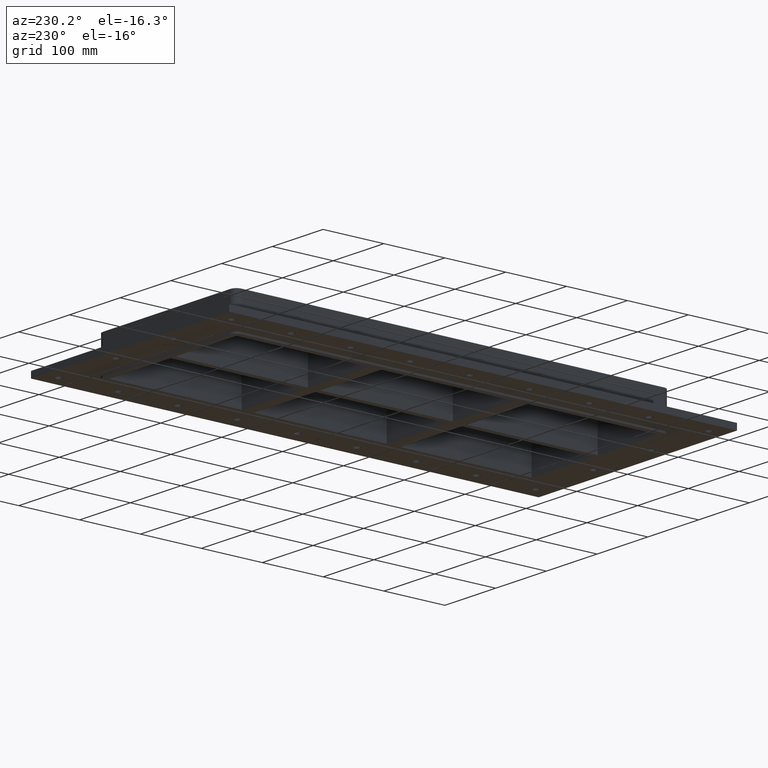
[diagram: clean part render]
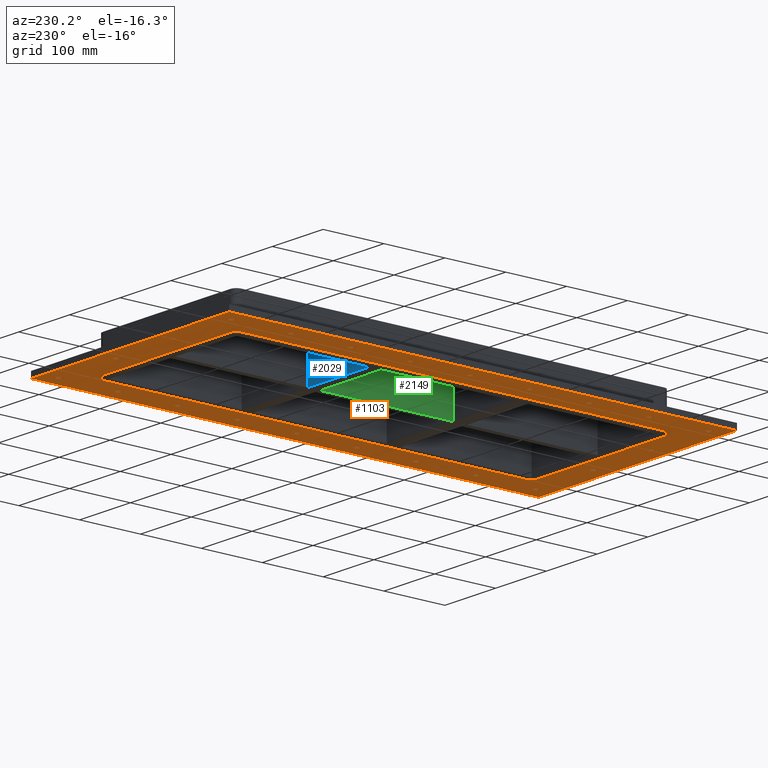
[diagram: same view with three faces highlighted in distinct colors, each labeled with its STEP entity id]
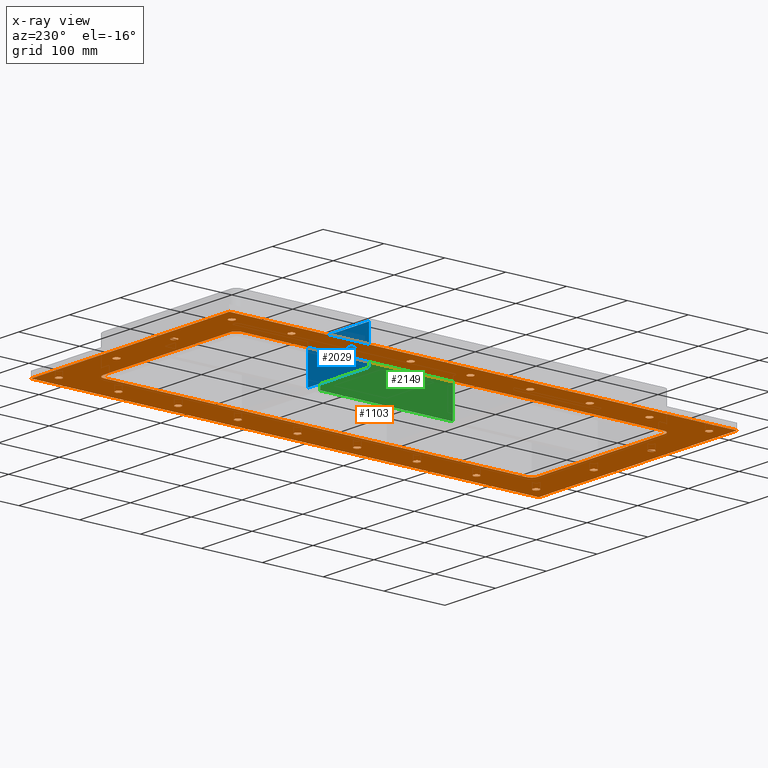
[diagram: x-ray of the same camera — body ghosted, the three highlighted faces saturated]
A machine part, auxiliary view with three faces highlighted in distinct colors.
The next image is the same camera in x-ray (body ghosted, the three faces saturated) — at least one of them is partly hidden behind the body in this view.
Their STEP definitions:

[orange] entity #1103 — the highlighted planar face has unit normal (0, 0, 1).
#73=CARTESIAN_POINT('',(-62.083333333333286,-392.0,-27.000000000000028));
#74=VERTEX_POINT('',#73);
#75=CARTESIAN_POINT('',(-56.8333333333333,-392.0,-27.000000000000028));
#76=DIRECTION('',(0.0,0.0,1.0));
#77=DIRECTION('',(1.0,0.0,0.0));
#78=AXIS2_PLACEMENT_3D('',#75,#76,#77);
#79=CIRCLE('',#78,5.25);
#80=EDGE_CURVE('',#74,#74,#79,.T.);
#101=CARTESIAN_POINT('',(51.583333333333385,-392.0,-27.000000000000028));
#102=VERTEX_POINT('',#101);
#103=CARTESIAN_POINT('',(56.833333333333371,-392.0,-27.000000000000028));
#104=DIRECTION('',(0.0,0.0,1.0));
#105=DIRECTION('',(1.0,0.0,0.0));
#106=AXIS2_PLACEMENT_3D('',#103,#104,#105);
#107=CIRCLE('',#106,5.25);
#108=EDGE_CURVE('',#102,#102,#107,.T.);
#129=CARTESIAN_POINT('',(51.583333333333243,392.0,-27.000000000000028));
#130=VERTEX_POINT('',#129);
#131=CARTESIAN_POINT('',(56.833333333333229,392.0,-27.000000000000028));
#132=DIRECTION('',(0.0,0.0,1.0));
#133=DIRECTION('',(1.0,0.0,0.0));
#134=AXIS2_PLACEMENT_3D('',#131,#132,#133);
#135=CIRCLE('',#134,5.25);
#136=EDGE_CURVE('',#130,#130,#135,.T.);
#157=CARTESIAN_POINT('',(-62.083333333333428,392.0,-27.000000000000028));
#158=VERTEX_POINT('',#157);
#159=CARTESIAN_POINT('',(-56.833333333333442,392.0,-27.000000000000028));
#160=DIRECTION('',(0.0,0.0,1.0));
#161=DIRECTION('',(1.0,0.0,0.0));
#162=AXIS2_PLACEMENT_3D('',#159,#160,#161);
#163=CIRCLE('',#162,5.25);
#164=EDGE_CURVE('',#158,#158,#163,.T.);
#185=CARTESIAN_POINT('',(165.25000000000003,-294.00000000000011,-27.000000000000028));
#186=VERTEX_POINT('',#185);
#187=CARTESIAN_POINT('',(170.5,-294.00000000000011,-27.000000000000028));
#188=DIRECTION('',(0.0,0.0,1.0));
#189=DIRECTION('',(1.0,0.0,0.0));
#190=AXIS2_PLACEMENT_3D('',#187,#188,#189);
#191=CIRCLE('',#190,5.25);
#192=EDGE_CURVE('',#186,#186,#191,.T.);
#213=CARTESIAN_POINT('',(165.25000000000003,-195.99999999999997,-27.000000000000028));
#214=VERTEX_POINT('',#213);
#215=CARTESIAN_POINT('',(170.5,-195.99999999999997,-27.000000000000028));
#216=DIRECTION('',(0.0,0.0,1.0));
#217=DIRECTION('',(1.0,0.0,0.0));
#218=AXIS2_PLACEMENT_3D('',#215,#216,#217);
#219=CIRCLE('',#218,5.25);
#220=EDGE_CURVE('',#214,#214,#219,.T.);
#241=CARTESIAN_POINT('',(165.25,-98.0,-27.000000000000028));
#242=VERTEX_POINT('',#241);
#243=CARTESIAN_POINT('',(170.49999999999997,-98.0,-27.000000000000028));
#244=DIRECTION('',(0.0,0.0,1.0));
#245=DIRECTION('',(1.0,0.0,0.0));
#246=AXIS2_PLACEMENT_3D('',#243,#244,#245);
#247=CIRCLE('',#246,5.25);
#248=EDGE_CURVE('',#242,#242,#247,.T.);
#269=CARTESIAN_POINT('',(165.25,0.0,-27.000000000000028));
#270=VERTEX_POINT('',#269);
#271=CARTESIAN_POINT('',(170.49999999999997,0.0,-27.000000000000028));
#272=DIRECTION('',(0.0,0.0,1.0));
#273=DIRECTION('',(1.0,0.0,0.0));
#274=AXIS2_PLACEMENT_3D('',#271,#272,#273);
#275=CIRCLE('',#274,5.25);
#276=EDGE_CURVE('',#270,#270,#275,.T.);
#297=CARTESIAN_POINT('',(165.25,98.0,-27.000000000000028));
#298=VERTEX_POINT('',#297);
#299=CARTESIAN_POINT('',(170.49999999999997,98.0,-27.000000000000028));
#300=DIRECTION('',(0.0,0.0,1.0));
#301=DIRECTION('',(1.0,0.0,0.0));
#302=AXIS2_PLACEMENT_3D('',#299,#300,#301);
#303=CIRCLE('',#302,5.25);
#304=EDGE_CURVE('',#298,#298,#303,.T.);
#325=CARTESIAN_POINT('',(165.24999999999994,196.0,-27.000000000000028));
#326=VERTEX_POINT('',#325);
#327=CARTESIAN_POINT('',(170.49999999999994,196.0,-27.000000000000028));
#328=DIRECTION('',(0.0,0.0,1.0));
#329=DIRECTION('',(1.0,0.0,0.0));
#330=AXIS2_PLACEMENT_3D('',#327,#328,#329);
#331=CIRCLE('',#330,5.25);
#332=EDGE_CURVE('',#326,#326,#331,.T.);
#353=CARTESIAN_POINT('',(165.24999999999994,294.0,-27.000000000000028));
#354=VERTEX_POINT('',#353);
#355=CARTESIAN_POINT('',(170.49999999999994,294.0,-27.000000000000028));
#356=DIRECTION('',(0.0,0.0,1.0));
#357=DIRECTION('',(1.0,0.0,0.0));
#358=AXIS2_PLACEMENT_3D('',#355,#356,#357);
#359=CIRCLE('',#358,5.25);
#360=EDGE_CURVE('',#354,#354,#359,.T.);
#381=CARTESIAN_POINT('',(-175.75000000000006,294.00000000000011,-27.000000000000028));
#382=VERTEX_POINT('',#381);
#383=CARTESIAN_POINT('',(-170.50000000000009,294.00000000000011,-27.000000000000028));
#384=DIRECTION('',(0.0,0.0,1.0));
#385=DIRECTION('',(1.0,0.0,0.0));
#386=AXIS2_PLACEMENT_3D('',#383,#384,#385);
#387=CIRCLE('',#386,5.25);
#388=EDGE_CURVE('',#382,#382,#387,.T.);
#409=CARTESIAN_POINT('',(-175.75000000000003,195.99999999999997,-27.000000000000028));
#410=VERTEX_POINT('',#409);
#411=CARTESIAN_POINT('',(-170.50000000000006,195.99999999999997,-27.000000000000028));
#412=DIRECTION('',(0.0,0.0,1.0));
#413=DIRECTION('',(1.0,0.0,0.0));
#414=AXIS2_PLACEMENT_3D('',#411,#412,#413);
#415=CIRCLE('',#414,5.25);
#416=EDGE_CURVE('',#410,#410,#415,.T.);
#437=CARTESIAN_POINT('',(-175.75000000000003,98.0,-27.000000000000028));
#438=VERTEX_POINT('',#437);
#439=CARTESIAN_POINT('',(-170.50000000000006,98.0,-27.000000000000028));
#440=DIRECTION('',(0.0,0.0,1.0));
#441=DIRECTION('',(1.0,0.0,0.0));
#442=AXIS2_PLACEMENT_3D('',#439,#440,#441);
#443=CIRCLE('',#442,5.25);
#444=EDGE_CURVE('',#438,#438,#443,.T.);
#465=CARTESIAN_POINT('',(-175.75,0.0,-27.000000000000028));
#466=VERTEX_POINT('',#465);
#467=CARTESIAN_POINT('',(-170.5,0.0,-27.000000000000028));
#468=DIRECTION('',(0.0,0.0,1.0));
#469=DIRECTION('',(1.0,0.0,0.0));
#470=AXIS2_PLACEMENT_3D('',#467,#468,#469);
#471=CIRCLE('',#470,5.25);
#472=EDGE_CURVE('',#466,#466,#471,.T.);
#493=CARTESIAN_POINT('',(-175.75,-98.0,-27.000000000000028));
#494=VERTEX_POINT('',#493);
#495=CARTESIAN_POINT('',(-170.5,-98.0,-27.000000000000028));
#496=DIRECTION('',(0.0,0.0,1.0));
#497=DIRECTION('',(1.0,0.0,0.0));
#498=AXIS2_PLACEMENT_3D('',#495,#496,#497);
#499=CIRCLE('',#498,5.25);
#500=EDGE_CURVE('',#494,#494,#499,.T.);
#521=CARTESIAN_POINT('',(-175.74999999999994,-196.0,-27.000000000000028));
#522=VERTEX_POINT('',#521);
#523=CARTESIAN_POINT('',(-170.49999999999997,-196.0,-27.000000000000028));
#524=DIRECTION('',(0.0,0.0,1.0));
#525=DIRECTION('',(1.0,0.0,0.0));
#526=AXIS2_PLACEMENT_3D('',#523,#524,#525);
#527=CIRCLE('',#526,5.25);
#528=EDGE_CURVE('',#522,#522,#527,.T.);
#549=CARTESIAN_POINT('',(-175.74999999999994,-294.0,-27.000000000000028));
#550=VERTEX_POINT('',#549);
#551=CARTESIAN_POINT('',(-170.49999999999997,-294.0,-27.000000000000028));
#552=DIRECTION('',(0.0,0.0,1.0));
#553=DIRECTION('',(1.0,0.0,0.0));
#554=AXIS2_PLACEMENT_3D('',#551,#552,#553);
#555=CIRCLE('',#554,5.25);
#556=EDGE_CURVE('',#550,#550,#555,.T.);
#577=CARTESIAN_POINT('',(-175.75000000000011,392.0,-27.000000000000028));
#578=VERTEX_POINT('',#577);
#579=CARTESIAN_POINT('',(-170.50000000000011,392.0,-27.000000000000028));
#580=DIRECTION('',(0.0,0.0,1.0));
#581=DIRECTION('',(1.0,0.0,0.0));
#582=AXIS2_PLACEMENT_3D('',#579,#580,#581);
#583=CIRCLE('',#582,5.25);
#584=EDGE_CURVE('',#578,#578,#583,.T.);
#605=CARTESIAN_POINT('',(165.24999999999994,392.0,-27.000000000000028));
#606=VERTEX_POINT('',#605);
#607=CARTESIAN_POINT('',(170.49999999999994,392.0,-27.000000000000028));
#608=DIRECTION('',(0.0,0.0,1.0));
#609=DIRECTION('',(1.0,0.0,0.0));
#610=AXIS2_PLACEMENT_3D('',#607,#608,#609);
#611=CIRCLE('',#610,5.25);
#612=EDGE_CURVE('',#606,#606,#611,.T.);
#633=CARTESIAN_POINT('',(165.25000000000006,-392.0,-27.000000000000028));
#634=VERTEX_POINT('',#633);
#635=CARTESIAN_POINT('',(170.50000000000006,-392.0,-27.000000000000028));
#636=DIRECTION('',(0.0,0.0,1.0));
#637=DIRECTION('',(1.0,0.0,0.0));
#638=AXIS2_PLACEMENT_3D('',#635,#636,#637);
#639=CIRCLE('',#638,5.25);
#640=EDGE_CURVE('',#634,#634,#639,.T.);
#661=CARTESIAN_POINT('',(-175.74999999999994,-392.0,-27.000000000000028));
#662=VERTEX_POINT('',#661);
#663=CARTESIAN_POINT('',(-170.49999999999997,-392.0,-27.000000000000028));
#664=DIRECTION('',(0.0,0.0,1.0));
#665=DIRECTION('',(1.0,0.0,0.0));
#666=AXIS2_PLACEMENT_3D('',#663,#664,#665);
#667=CIRCLE('',#666,5.25);
#668=EDGE_CURVE('',#662,#662,#667,.T.);
#689=CARTESIAN_POINT('',(-195.49999999999997,-417.0,-27.0));
#690=VERTEX_POINT('',#689);
#691=CARTESIAN_POINT('',(-195.50000000000011,417.0,-27.0));
#692=VERTEX_POINT('',#691);
#693=CARTESIAN_POINT('',(-195.49999999999997,-417.0,-27.0));
#694=DIRECTION('',(0.0,1.0,0.0));
#695=VECTOR('',#694,834.0);
#696=LINE('',#693,#695);
#697=EDGE_CURVE('',#690,#692,#696,.T.);
#729=CARTESIAN_POINT('',(195.49999999999994,417.0,-27.0));
#730=VERTEX_POINT('',#729);
#731=CARTESIAN_POINT('',(-195.50000000000011,417.0,-27.0));
#732=DIRECTION('',(1.0,0.0,0.0));
#733=VECTOR('',#732,391.00000000000011);
#734=LINE('',#731,#733);
#735=EDGE_CURVE('',#692,#730,#734,.T.);
#760=CARTESIAN_POINT('',(195.50000000000006,-417.0,-27.0));
#761=VERTEX_POINT('',#760);
#762=CARTESIAN_POINT('',(195.49999999999994,417.0,-27.0));
#763=DIRECTION('',(0.0,-1.0,0.0));
#764=VECTOR('',#763,834.0);
#765=LINE('',#762,#764);
#766=EDGE_CURVE('',#730,#761,#765,.T.);
#791=CARTESIAN_POINT('',(195.50000000000006,-417.0,-27.0));
#792=DIRECTION('',(-1.0,0.0,0.0));
#793=VECTOR('',#792,391.0);
#794=LINE('',#791,#793);
#795=EDGE_CURVE('',#761,#690,#794,.T.);
#956=CARTESIAN_POINT('',(-4.176251E-014,0.0,-27.000000000000007));
#957=DIRECTION('',(0.0,0.0,1.0));
#958=DIRECTION('',(1.0,0.0,0.0));
#959=AXIS2_PLACEMENT_3D('',#956,#957,#958);
#960=PLANE('',#959);
#961=ORIENTED_EDGE('',*,*,#795,.T.);
#962=ORIENTED_EDGE('',*,*,#697,.T.);
#963=ORIENTED_EDGE('',*,*,#735,.T.);
#964=ORIENTED_EDGE('',*,*,#766,.T.);
#965=EDGE_LOOP('',(#961,#962,#963,#964));
#966=FACE_OUTER_BOUND('',#965,.T.);
#967=ORIENTED_EDGE('',*,*,#80,.T.);
#968=EDGE_LOOP('',(#967));
#969=FACE_BOUND('',#968,.T.);
#970=ORIENTED_EDGE('',*,*,#108,.T.);
#971=EDGE_LOOP('',(#970));
#972=FACE_BOUND('',#971,.T.);
#973=ORIENTED_EDGE('',*,*,#136,.T.);
#974=EDGE_LOOP('',(#973));
#975=FACE_BOUND('',#974,.T.);
#976=ORIENTED_EDGE('',*,*,#164,.T.);
#977=EDGE_LOOP('',(#976));
#978=FACE_BOUND('',#977,.T.);
#979=ORIENTED_EDGE('',*,*,#192,.T.);
#980=EDGE_LOOP('',(#979));
#981=FACE_BOUND('',#980,.T.);
#982=ORIENTED_EDGE('',*,*,#220,.T.);
#983=EDGE_LOOP('',(#982));
#984=FACE_BOUND('',#983,.T.);
#985=ORIENTED_EDGE('',*,*,#248,.T.);
#986=EDGE_LOOP('',(#985));
#987=FACE_BOUND('',#986,.T.);
#988=ORIENTED_EDGE('',*,*,#276,.T.);
#989=EDGE_LOOP('',(#988));
#990=FACE_BOUND('',#989,.T.);
#991=ORIENTED_EDGE('',*,*,#304,.T.);
#992=EDGE_LOOP('',(#991));
#993=FACE_BOUND('',#992,.T.);
#994=ORIENTED_EDGE('',*,*,#332,.T.);
#995=EDGE_LOOP('',(#994));
#996=FACE_BOUND('',#995,.T.);
#997=ORIENTED_EDGE('',*,*,#360,.T.);
#998=EDGE_LOOP('',(#997));
#999=FACE_BOUND('',#998,.T.);
#1000=ORIENTED_EDGE('',*,*,#388,.T.);
#1001=EDGE_LOOP('',(#1000));
#1002=FACE_BOUND('',#1001,.T.);
#1003=ORIENTED_EDGE('',*,*,#416,.T.);
#1004=EDGE_LOOP('',(#1003));
#1005=FACE_BOUND('',#1004,.T.);
#1006=ORIENTED_EDGE('',*,*,#444,.T.);
#1007=EDGE_LOOP('',(#1006));
#1008=FACE_BOUND('',#1007,.T.);
#1009=ORIENTED_EDGE('',*,*,#472,.T.);
#1010=EDGE_LOOP('',(#1009));
#1011=FACE_BOUND('',#1010,.T.);
#1012=ORIENTED_EDGE('',*,*,#500,.T.);
#1013=EDGE_LOOP('',(#1012));
#1014=FACE_BOUND('',#1013,.T.);
#1015=ORIENTED_EDGE('',*,*,#528,.T.);
#1016=EDGE_LOOP('',(#1015));
#1017=FACE_BOUND('',#1016,.T.);
#1018=ORIENTED_EDGE('',*,*,#556,.T.);
#1019=EDGE_LOOP('',(#1018));
#1020=FACE_BOUND('',#1019,.T.);
#1021=ORIENTED_EDGE('',*,*,#584,.T.);
#1022=EDGE_LOOP('',(#1021));
#1023=FACE_BOUND('',#1022,.T.);
#1024=ORIENTED_EDGE('',*,*,#612,.T.);
#1025=EDGE_LOOP('',(#1024));
#1026=FACE_BOUND('',#1025,.T.);
#1027=ORIENTED_EDGE('',*,*,#640,.T.);
#1028=EDGE_LOOP('',(#1027));
#1029=FACE_BOUND('',#1028,.T.);
#1030=ORIENTED_EDGE('',*,*,#668,.T.);
#1031=EDGE_LOOP('',(#1030));
#1032=FACE_BOUND('',#1031,.T.);
#1033=CARTESIAN_POINT('',(125.49999999999996,357.0,-27.0));
#1034=VERTEX_POINT('',#1033);
#1035=CARTESIAN_POINT('',(135.49999999999997,347.0,-27.0));
#1036=VERTEX_POINT('',#1035);
#1037=CARTESIAN_POINT('',(125.4999999999999,347.00000000000017,-27.000000000000007));
#1038=DIRECTION('',(0.0,0.0,-1.0));
#1039=DIRECTION('',(0.707106781186547,0.707106781186547,0.0));
#1040=AXIS2_PLACEMENT_3D('',#1037,#1038,#1039);
#1041=CIRCLE('',#1040,9.999999999999998);
#1042=EDGE_CURVE('',#1034,#1036,#1041,.T.);
#1043=ORIENTED_EDGE('',*,*,#1042,.F.);
#1044=CARTESIAN_POINT('',(-125.50000000000009,357.0,-27.0));
#1045=VERTEX_POINT('',#1044);
#1046=CARTESIAN_POINT('',(-125.5000000000001,357.00000000000017,-27.000000000000007));
#1047=DIRECTION('',(1.0,0.0,0.0));
#1048=VECTOR('',#1047,251.00000000000006);
#1049=LINE('',#1046,#1048);
#1050=EDGE_CURVE('',#1045,#1034,#1049,.T.);
#1051=ORIENTED_EDGE('',*,*,#1050,.F.);
#1052=CARTESIAN_POINT('',(-135.50000000000009,347.0,-27.0));
#1053=VERTEX_POINT('',#1052);
#1054=CARTESIAN_POINT('',(-125.50000000000011,347.00000000000017,-27.000000000000007));
#1055=DIRECTION('',(0.0,0.0,-1.0));
#1056=DIRECTION('',(-0.707106781186547,0.707106781186547,0.0));
#1057=AXIS2_PLACEMENT_3D('',#1054,#1055,#1056);
#1058=CIRCLE('',#1057,9.999999999999998);
#1059=EDGE_CURVE('',#1053,#1045,#1058,.T.);
#1060=ORIENTED_EDGE('',*,*,#1059,.F.);
#1061=CARTESIAN_POINT('',(-135.49999999999997,-347.0,-27.0));
#1062=VERTEX_POINT('',#1061);
#1063=CARTESIAN_POINT('',(-135.49999999999989,-347.00000000000006,-27.000000000000007));
#1064=DIRECTION('',(0.0,1.0,0.0));
#1065=VECTOR('',#1064,694.0);
#1066=LINE('',#1063,#1065);
#1067=EDGE_CURVE('',#1062,#1053,#1066,.T.);
#1068=ORIENTED_EDGE('',*,*,#1067,.F.);
#1069=CARTESIAN_POINT('',(-125.49999999999994,-357.0,-27.0));
#1070=VERTEX_POINT('',#1069);
#1071=CARTESIAN_POINT('',(-125.4999999999999,-346.99999999999989,-27.000000000000007));
#1072=DIRECTION('',(0.0,0.0,-1.0));
#1073=DIRECTION('',(-0.707106781186547,-0.707106781186547,0.0));
#1074=AXIS2_PLACEMENT_3D('',#1071,#1072,#1073);
#1075=CIRCLE('',#1074,9.999999999999998);
#1076=EDGE_CURVE('',#1070,#1062,#1075,.T.);
#1077=ORIENTED_EDGE('',*,*,#1076,.F.);
#1078=CARTESIAN_POINT('',(125.50000000000009,-357.0,-27.0));
#1079=VERTEX_POINT('',#1078);
#1080=CARTESIAN_POINT('',(125.50000000000006,-356.99999999999989,-27.000000000000007));
#1081=DIRECTION('',(-1.0,0.0,0.0));
#1082=VECTOR('',#1081,251.0);
#1083=LINE('',#1080,#1082);
#1084=EDGE_CURVE('',#1079,#1070,#1083,.T.);
#1085=ORIENTED_EDGE('',*,*,#1084,.F.);
#1086=CARTESIAN_POINT('',(135.50000000000009,-347.0,-27.0));
#1087=VERTEX_POINT('',#1086);
#1088=CARTESIAN_POINT('',(125.50000000000004,-346.99999999999989,-27.000000000000007));
#1089=DIRECTION('',(0.0,0.0,-1.0));
#1090=DIRECTION('',(0.707106781186547,-0.707106781186547,0.0));
#1091=AXIS2_PLACEMENT_3D('',#1088,#1089,#1090);
#1092=CIRCLE('',#1091,9.999999999999998);
#1093=EDGE_CURVE('',#1087,#1079,#1092,.T.);
#1094=ORIENTED_EDGE('',*,*,#1093,.F.);
#1095=CARTESIAN_POINT('',(135.49999999999989,347.00000000000006,-27.000000000000007));
#1096=DIRECTION('',(0.0,-1.0,0.0));
#1097=VECTOR('',#1096,694.0);
#1098=LINE('',#1095,#1097);
#1099=EDGE_CURVE('',#1036,#1087,#1098,.T.);
#1100=ORIENTED_EDGE('',*,*,#1099,.F.);
#1101=EDGE_LOOP('',(#1043,#1051,#1060,#1068,#1077,#1085,#1094,#1100));
#1102=FACE_BOUND('',#1101,.T.);
#1103=ADVANCED_FACE('',(#966,#969,#972,#975,#978,#981,#984,#987,#990,#993,#996,#999,#1002,#1005,#1008,#1011,#1014,#1017,#1020,#1023,#1026,#1029,#1032,#1102),#960,.F.);

[blue] entity #2029 — the highlighted planar face has unit normal (0, -1, 0).
#1478=CARTESIAN_POINT('',(-125.50000000000003,129.00000000000011,-30.0));
#1479=VERTEX_POINT('',#1478);
#1486=CARTESIAN_POINT('',(-5.000000000000018,129.00000000000011,-30.0));
#1487=VERTEX_POINT('',#1486);
#1488=CARTESIAN_POINT('',(-125.50000000000003,129.00000000000011,-30.0));
#1489=DIRECTION('',(1.0,0.0,0.0));
#1490=VECTOR('',#1489,120.50000000000001);
#1491=LINE('',#1488,#1490);
#1492=EDGE_CURVE('',#1479,#1487,#1491,.T.);
#1989=CARTESIAN_POINT('',(-125.50000000000003,129.00000000000011,30.0));
#1990=VERTEX_POINT('',#1989);
#1997=CARTESIAN_POINT('',(-125.50000000000003,129.00000000000011,30.0));
#1998=DIRECTION('',(0.0,0.0,-1.0));
#1999=VECTOR('',#1998,60.0);
#2000=LINE('',#1997,#1999);
#2001=EDGE_CURVE('',#1990,#1479,#2000,.T.);
#2006=CARTESIAN_POINT('',(-5.000000000000018,129.00000000000011,30.0));
#2007=DIRECTION('',(0.0,-1.0,0.0));
#2008=DIRECTION('',(-1.0,0.0,0.0));
#2009=AXIS2_PLACEMENT_3D('',#2006,#2007,#2008);
#2010=PLANE('',#2009);
#2011=ORIENTED_EDGE('',*,*,#1492,.F.);
#2012=ORIENTED_EDGE('',*,*,#2001,.F.);
#2013=CARTESIAN_POINT('',(-5.000000000000018,129.00000000000011,30.0));
#2014=VERTEX_POINT('',#2013);
#2015=CARTESIAN_POINT('',(-5.000000000000018,129.00000000000011,30.0));
#2016=DIRECTION('',(-1.0,0.0,0.0));
#2017=VECTOR('',#2016,120.50000000000001);
#2018=LINE('',#2015,#2017);
#2019=EDGE_CURVE('',#2014,#1990,#2018,.T.);
#2020=ORIENTED_EDGE('',*,*,#2019,.F.);
#2021=CARTESIAN_POINT('',(-5.000000000000018,129.00000000000011,30.0));
#2022=DIRECTION('',(0.0,0.0,-1.0));
#2023=VECTOR('',#2022,60.0);
#2024=LINE('',#2021,#2023);
#2025=EDGE_CURVE('',#2014,#1487,#2024,.T.);
#2026=ORIENTED_EDGE('',*,*,#2025,.T.);
#2027=EDGE_LOOP('',(#2011,#2012,#2020,#2026));
#2028=FACE_OUTER_BOUND('',#2027,.T.);
#2029=ADVANCED_FACE('',(#2028),#2010,.F.);

[green] entity #2149 — the highlighted planar face has unit normal (1, 0, 0).
#1520=CARTESIAN_POINT('',(-4.999999999999947,-108.99999999999989,-30.0));
#1521=VERTEX_POINT('',#1520);
#1528=CARTESIAN_POINT('',(-4.999999999999982,109.00000000000013,-30.0));
#1529=VERTEX_POINT('',#1528);
#1530=CARTESIAN_POINT('',(-4.999999999999947,-108.99999999999986,-30.0));
#1531=DIRECTION('',(0.0,1.0,0.0));
#1532=VECTOR('',#1531,218.0);
#1533=LINE('',#1530,#1532);
#1534=EDGE_CURVE('',#1521,#1529,#1533,.T.);
#2109=CARTESIAN_POINT('',(-4.999999999999947,-108.99999999999989,30.0));
#2110=VERTEX_POINT('',#2109);
#2117=CARTESIAN_POINT('',(-4.999999999999947,-108.99999999999989,30.0));
#2118=DIRECTION('',(0.0,0.0,-1.0));
#2119=VECTOR('',#2118,60.0);
#2120=LINE('',#2117,#2119);
#2121=EDGE_CURVE('',#2110,#1521,#2120,.T.);
#2126=CARTESIAN_POINT('',(-4.999999999999982,109.00000000000013,30.0));
#2127=DIRECTION('',(1.0,0.0,0.0));
#2128=DIRECTION('',(0.0,-1.0,0.0));
#2129=AXIS2_PLACEMENT_3D('',#2126,#2127,#2128);
#2130=PLANE('',#2129);
#2131=ORIENTED_EDGE('',*,*,#1534,.F.);
#2132=ORIENTED_EDGE('',*,*,#2121,.F.);
#2133=CARTESIAN_POINT('',(-4.999999999999982,109.00000000000013,30.0));
#2134=VERTEX_POINT('',#2133);
#2135=CARTESIAN_POINT('',(-4.999999999999982,109.00000000000013,30.0));
#2136=DIRECTION('',(0.0,-1.0,0.0));
#2137=VECTOR('',#2136,218.0);
#2138=LINE('',#2135,#2137);
#2139=EDGE_CURVE('',#2134,#2110,#2138,.T.);
#2140=ORIENTED_EDGE('',*,*,#2139,.F.);
#2141=CARTESIAN_POINT('',(-4.999999999999982,109.00000000000013,30.0));
#2142=DIRECTION('',(0.0,0.0,-1.0));
#2143=VECTOR('',#2142,60.0);
#2144=LINE('',#2141,#2143);
#2145=EDGE_CURVE('',#2134,#1529,#2144,.T.);
#2146=ORIENTED_EDGE('',*,*,#2145,.T.);
#2147=EDGE_LOOP('',(#2131,#2132,#2140,#2146));
#2148=FACE_OUTER_BOUND('',#2147,.T.);
#2149=ADVANCED_FACE('',(#2148),#2130,.F.);